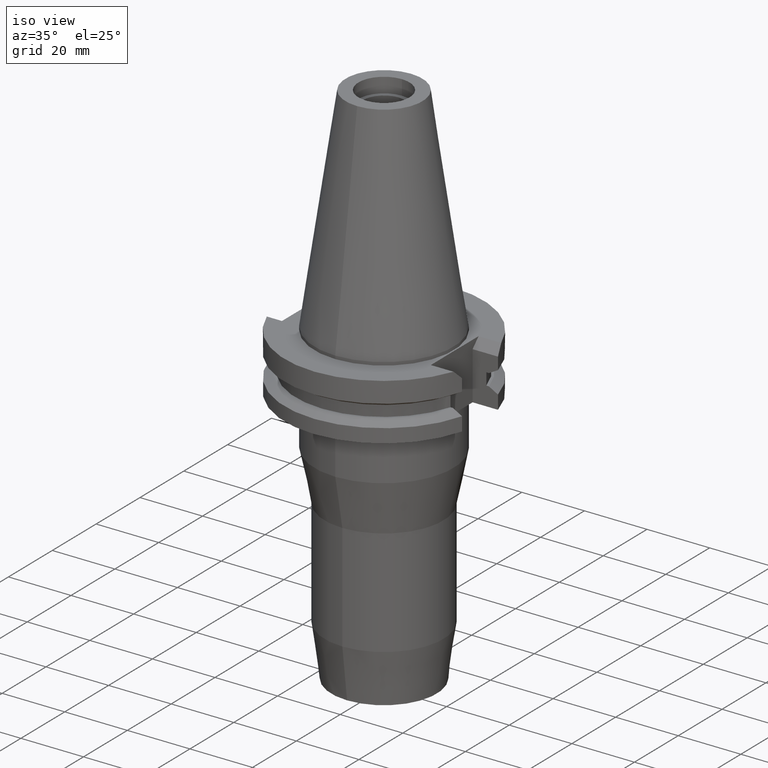
[diagram: clean part render]
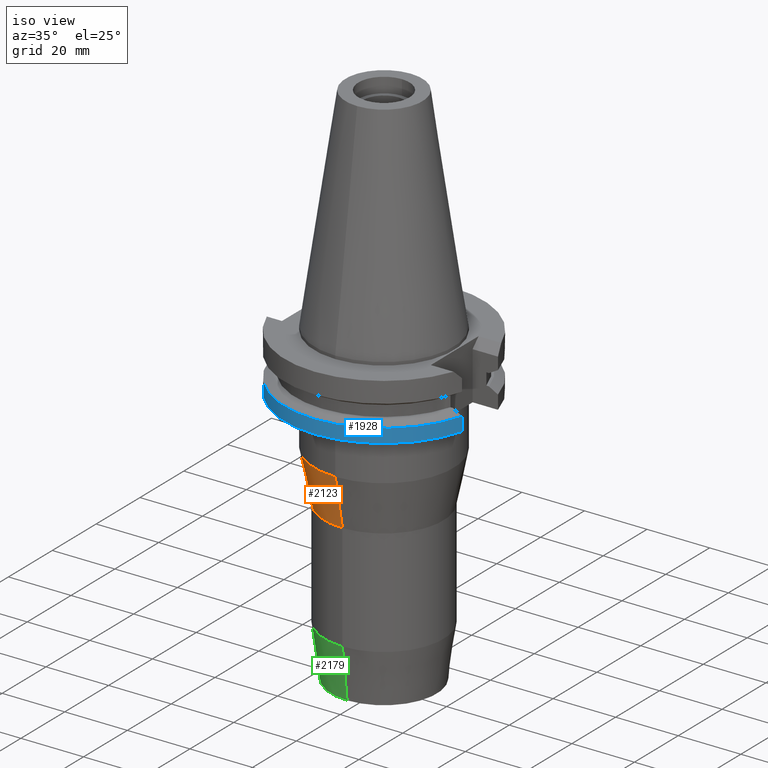
[diagram: same view with three faces highlighted in distinct colors, each labeled with its STEP entity id]
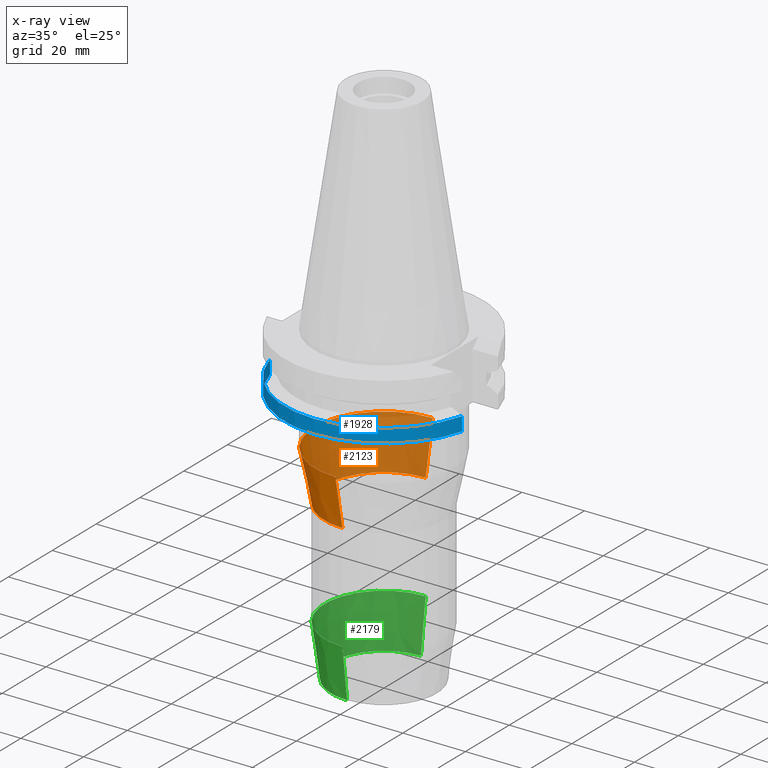
[diagram: x-ray of the same camera — body ghosted, the three highlighted faces saturated]
A machine part, iso view with three faces highlighted in distinct colors.
The next image is the same camera in x-ray (body ghosted, the three faces saturated) — at least one of them is partly hidden behind the body in this view.
Their STEP definitions:

[orange] entity #2123 — the highlighted conical surface has half-angle 11.394 deg.
#862=DIRECTION('',(0.E0,-1.975632401910E-1,-9.802901438478E-1));
#863=VECTOR('',#862,1.632388695833E1);
#864=CARTESIAN_POINT('',(0.E0,2.2225E1,-3.5E1));
#865=LINE('',#864,#863);
#885=CARTESIAN_POINT('',(0.E0,0.E0,-3.5E1));
#886=DIRECTION('',(0.E0,0.E0,1.E0));
#887=DIRECTION('',(0.E0,1.E0,0.E0));
#888=AXIS2_PLACEMENT_3D('',#885,#886,#887);
#893=DIRECTION('',(0.E0,1.975632401910E-1,-9.802901438478E-1));
#894=VECTOR('',#893,1.632388695833E1);
#895=CARTESIAN_POINT('',(0.E0,-2.2225E1,-3.5E1));
#896=LINE('',#895,#894);
#900=CARTESIAN_POINT('',(0.E0,0.E0,-5.100214549454E1));
#901=DIRECTION('',(0.E0,0.E0,-1.E0));
#902=DIRECTION('',(0.E0,-1.E0,0.E0));
#903=AXIS2_PLACEMENT_3D('',#900,#901,#902);
#1322=CARTESIAN_POINT('',(0.E0,1.9E1,-5.100214549454E1));
#1323=VERTEX_POINT('',#1322);
#1324=CARTESIAN_POINT('',(0.E0,-1.9E1,-5.100214549454E1));
#1325=VERTEX_POINT('',#1324);
#1326=CARTESIAN_POINT('',(0.E0,2.2225E1,-3.5E1));
#1327=VERTEX_POINT('',#1326);
#1328=CARTESIAN_POINT('',(0.E0,-2.2225E1,-3.5E1));
#1329=VERTEX_POINT('',#1328);
#2111=CARTESIAN_POINT('',(0.E0,0.E0,-4.300107274727E1));
#2112=DIRECTION('',(0.E0,0.E0,1.E0));
#2113=DIRECTION('',(0.E0,1.E0,0.E0));
#2114=AXIS2_PLACEMENT_3D('',#2111,#2112,#2113);
#2115=CONICAL_SURFACE('',#2114,2.06125E1,1.13945E1);
#2116=ORIENTED_EDGE('',*,*,#2101,.F.);
#2117=ORIENTED_EDGE('',*,*,#2078,.T.);
#2118=ORIENTED_EDGE('',*,*,#2105,.T.);
#2120=ORIENTED_EDGE('',*,*,#2119,.T.);
#2121=EDGE_LOOP('',(#2116,#2117,#2118,#2120));
#2122=FACE_OUTER_BOUND('',#2121,.F.);
#889=CIRCLE('',#888,2.2225E1);
#904=CIRCLE('',#903,1.9E1);
#2078=EDGE_CURVE('',#1327,#1329,#889,.T.);
#2101=EDGE_CURVE('',#1327,#1323,#865,.T.);
#2105=EDGE_CURVE('',#1329,#1325,#896,.T.);
#2119=EDGE_CURVE('',#1325,#1323,#904,.T.);
#2123=ADVANCED_FACE('',(#2122),#2115,.T.);

[blue] entity #1928 — the highlighted cylindrical surface (partial cylindrical patch) has radius 31.75 mm, axis along (0, 0, -1).
#235=CARTESIAN_POINT('',(0.E0,2.164471368983E-14,-1.905E1));
#236=DIRECTION('',(0.E0,0.E0,1.E0));
#237=DIRECTION('',(-9.661575315241E-1,-2.579527559055E-1,0.E0));
#238=AXIS2_PLACEMENT_3D('',#235,#236,#237);
#243=CARTESIAN_POINT('',(0.E0,2.164471368983E-14,-1.905E1));
#244=DIRECTION('',(0.E0,0.E0,1.E0));
#245=DIRECTION('',(0.E0,-1.E0,0.E0));
#246=AXIS2_PLACEMENT_3D('',#243,#244,#245);
#636=DIRECTION('',(3.682731677992E-8,1.379366260045E-7,-1.E0));
#637=VECTOR('',#636,4.396327811887E0);
#638=CARTESIAN_POINT('',(3.067550146399E1,-8.190000606415E0,-1.465367218811E1));
#639=LINE('',#638,#637);
#643=DIRECTION('',(-7.635537658565E-9,2.859820806319E-8,1.E0));
#644=VECTOR('',#643,4.396334354432E0);
#645=CARTESIAN_POINT('',(-3.067550162589E1,-8.19E0,-1.905E1));
#646=LINE('',#645,#644);
#792=CARTESIAN_POINT('',(0.E0,1.055026073065E-14,-1.465366676908E1));
#793=DIRECTION('',(0.E0,0.E0,-1.E0));
#794=DIRECTION('',(9.661575315241E-1,-2.579527559055E-1,0.E0));
#795=AXIS2_PLACEMENT_3D('',#792,#793,#794);
#800=CARTESIAN_POINT('',(0.E0,1.055026073065E-14,-1.465366676908E1));
#801=DIRECTION('',(0.E0,0.E0,-1.E0));
#802=DIRECTION('',(0.E0,-1.E0,0.E0));
#803=AXIS2_PLACEMENT_3D('',#800,#801,#802);
#1348=CARTESIAN_POINT('',(-3.067550162589E1,-8.19E0,-1.905E1));
#1349=VERTEX_POINT('',#1348);
#1350=CARTESIAN_POINT('',(1.540277123354E-14,-3.175E1,-1.905E1));
#1351=CARTESIAN_POINT('',(3.067550162589E1,-8.19E0,-1.905E1));
#1352=VERTEX_POINT('',#1350);
#1353=VERTEX_POINT('',#1351);
#1362=CARTESIAN_POINT('',(3.067550146399E1,-8.190000606415E0,
-1.465367218811E1));
#1363=VERTEX_POINT('',#1362);
#1374=CARTESIAN_POINT('',(-3.067550165946E1,-8.189999874273E0,
-1.465366564557E1));
#1375=VERTEX_POINT('',#1374);
#1376=CARTESIAN_POINT('',(0.E0,-3.175E1,-1.465366676908E1));
#1377=VERTEX_POINT('',#1376);
#1912=CARTESIAN_POINT('',(0.E0,2.164471368983E-14,7.67425E1));
#1913=DIRECTION('',(0.E0,0.E0,-1.E0));
#1914=DIRECTION('',(0.E0,-1.E0,0.E0));
#1915=AXIS2_PLACEMENT_3D('',#1912,#1913,#1914);
#1916=CYLINDRICAL_SURFACE('',#1915,3.175E1);
#1917=ORIENTED_EDGE('',*,*,#1894,.T.);
#1918=ORIENTED_EDGE('',*,*,#1613,.F.);
#1919=ORIENTED_EDGE('',*,*,#1611,.F.);
#1921=ORIENTED_EDGE('',*,*,#1920,.T.);
#1923=ORIENTED_EDGE('',*,*,#1922,.F.);
#1925=ORIENTED_EDGE('',*,*,#1924,.F.);
#1926=EDGE_LOOP('',(#1917,#1918,#1919,#1921,#1923,#1925));
#1927=FACE_OUTER_BOUND('',#1926,.F.);
#239=CIRCLE('',#238,3.175E1);
#247=CIRCLE('',#246,3.175E1);
#796=CIRCLE('',#795,3.175E1);
#804=CIRCLE('',#803,3.175E1);
#1611=EDGE_CURVE('',#1349,#1352,#239,.T.);
#1613=EDGE_CURVE('',#1352,#1353,#247,.T.);
#1894=EDGE_CURVE('',#1363,#1353,#639,.T.);
#1920=EDGE_CURVE('',#1349,#1375,#646,.T.);
#1922=EDGE_CURVE('',#1377,#1375,#804,.T.);
#1924=EDGE_CURVE('',#1363,#1377,#796,.T.);
#1928=ADVANCED_FACE('',(#1927),#1916,.T.);

[green] entity #2179 — the highlighted conical surface has half-angle 7.5 deg.
#922=DIRECTION('',(0.E0,-1.305261922200E-1,-9.914448613738E-1));
#923=VECTOR('',#922,1.650626562651E1);
#924=CARTESIAN_POINT('',(0.E0,1.9E1,-8.523494776413E1));
#925=LINE('',#924,#923);
#937=CARTESIAN_POINT('',(0.E0,0.E0,-8.523494776413E1));
#938=DIRECTION('',(0.E0,0.E0,1.E0));
#939=DIRECTION('',(0.E0,1.E0,0.E0));
#940=AXIS2_PLACEMENT_3D('',#937,#938,#939);
#945=DIRECTION('',(0.E0,1.305261922200E-1,-9.914448613738E-1));
#946=VECTOR('',#945,1.650626562651E1);
#947=CARTESIAN_POINT('',(0.E0,-1.9E1,-8.523494776413E1));
#948=LINE('',#947,#946);
#960=CARTESIAN_POINT('',(0.E0,0.E0,-1.016E2));
#961=DIRECTION('',(0.E0,0.E0,1.E0));
#962=DIRECTION('',(0.E0,1.E0,0.E0));
#963=AXIS2_PLACEMENT_3D('',#960,#961,#962);
#1314=CARTESIAN_POINT('',(0.E0,-1.68455E1,-1.016E2));
#1315=CARTESIAN_POINT('',(0.E0,1.68455E1,-1.016E2));
#1316=VERTEX_POINT('',#1314);
#1317=VERTEX_POINT('',#1315);
#1318=CARTESIAN_POINT('',(0.E0,1.9E1,-8.523494776413E1));
#1319=VERTEX_POINT('',#1318);
#1320=CARTESIAN_POINT('',(0.E0,-1.9E1,-8.523494776413E1));
#1321=VERTEX_POINT('',#1320);
#2167=CARTESIAN_POINT('',(0.E0,0.E0,-9.341747388207E1));
#2168=DIRECTION('',(0.E0,0.E0,1.E0));
#2169=DIRECTION('',(0.E0,1.E0,0.E0));
#2170=AXIS2_PLACEMENT_3D('',#2167,#2168,#2169);
#2171=CONICAL_SURFACE('',#2170,1.792275E1,7.5E0);
#2172=ORIENTED_EDGE('',*,*,#2157,.F.);
#2173=ORIENTED_EDGE('',*,*,#2134,.T.);
#2174=ORIENTED_EDGE('',*,*,#2161,.T.);
#2176=ORIENTED_EDGE('',*,*,#2175,.F.);
#2177=EDGE_LOOP('',(#2172,#2173,#2174,#2176));
#2178=FACE_OUTER_BOUND('',#2177,.F.);
#941=CIRCLE('',#940,1.9E1);
#964=CIRCLE('',#963,1.68455E1);
#2134=EDGE_CURVE('',#1319,#1321,#941,.T.);
#2157=EDGE_CURVE('',#1319,#1317,#925,.T.);
#2161=EDGE_CURVE('',#1321,#1316,#948,.T.);
#2175=EDGE_CURVE('',#1317,#1316,#964,.T.);
#2179=ADVANCED_FACE('',(#2178),#2171,.T.);